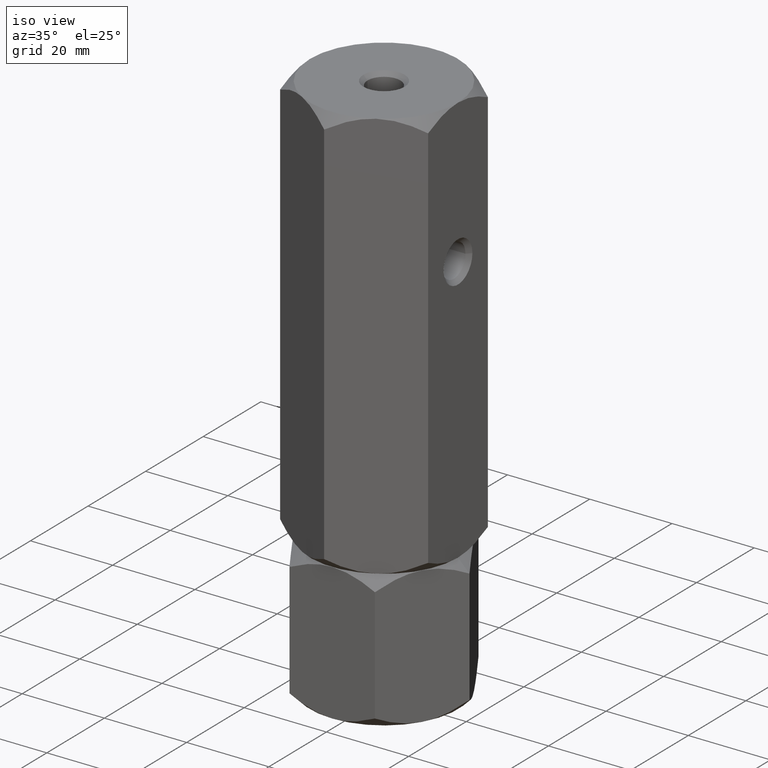
[diagram: clean part render]
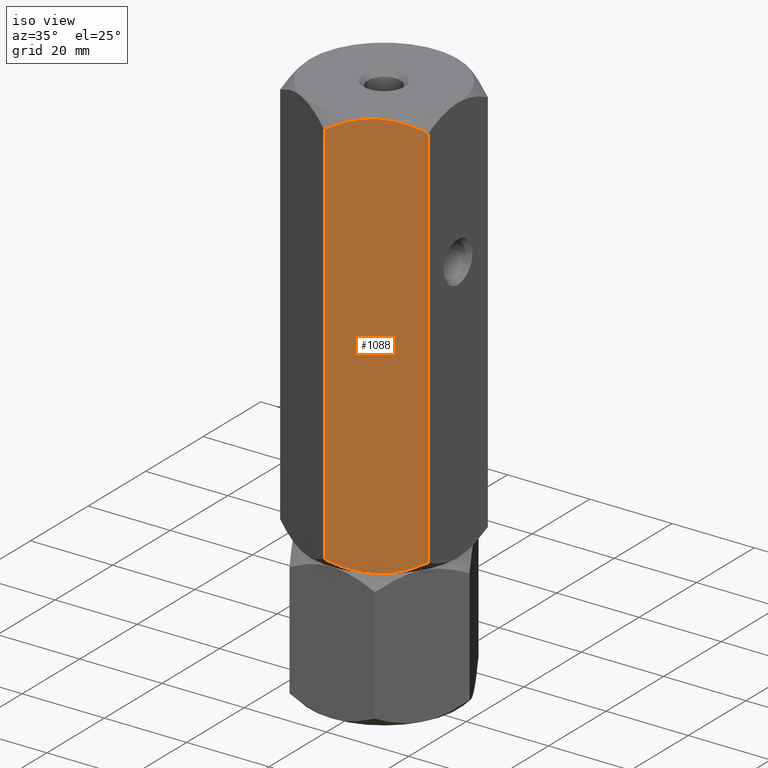
[diagram: same view with one face highlighted and labeled with its STEP entity id]
A machine part, iso view. The second image highlights one B-rep face of the part: STEP entity #1088.
In plain terms, the highlighted planar face has unit normal (-0.5, 0.866, 0).
Its self-contained STEP definition (entity closure, byte-faithful):
#49 = EDGE_CURVE ( 'NONE', #600, #632, #1937, .T. ) ;
#57 = VERTEX_POINT ( 'NONE', #984 ) ;
#62 = LINE ( 'NONE', #1528, #1071 ) ;
#68 = DIRECTION ( 'NONE',  ( -0.4999999999999996114, 0.8660254037844388186, 0.000000000000000000 ) ) ;
#75 = CARTESIAN_POINT ( 'NONE',  ( -3.379014044959083873E-15, -20.78460969082652809, 36.11794302415981406 ) ) ;
#83 = CARTESIAN_POINT ( 'NONE',  ( 8.999999999999994671, -15.58845726811989785, 133.3333333333333144 ) ) ;
#99 = CARTESIAN_POINT ( 'NONE',  ( 8.999999999999996447, -15.58845726811990140, 33.33333333333330017 ) ) ;
#107 = CARTESIAN_POINT ( 'NONE',  ( 8.999999999999994671, -15.58845726811989785, 133.3333333333333144 ) ) ;
#135 = EDGE_CURVE ( 'NONE', #1551, #1641, #1814, .T. ) ;
#157 = CARTESIAN_POINT ( 'NONE',  ( 12.90267270303527525, -13.33524813246348018, 33.87041888916230903 ) ) ;
#169 = CARTESIAN_POINT ( 'NONE',  ( 10.97671975407794953, -14.44719758599054238, 33.47205593243187138 ) ) ;
#183 = CARTESIAN_POINT ( 'NONE',  ( 9.394125676616221554, -15.36090870263097585, 33.33333333333330017 ) ) ;
#253 = CARTESIAN_POINT ( 'NONE',  ( 8.209538469370119884, -16.04483044561310479, 133.3160004768592444 ) ) ;
#401 = CARTESIAN_POINT ( 'NONE',  ( 5.097327296964715870, -17.84166640377631907, 132.7962477775043055 ) ) ;
#500 = CARTESIAN_POINT ( 'NONE',  ( 10.56546083169953398, -14.68463803553235358, 133.3333333333332860 ) ) ;
#517 = EDGE_LOOP ( 'NONE', ( #1203, #979, #626, #1453, #1237, #933 ) ) ;
#561 = CARTESIAN_POINT ( 'NONE',  ( 16.59030399953601531, -11.20619321075669816, 131.3626120078502595 ) ) ;
#573 = CARTESIAN_POINT ( 'NONE',  ( 1.411330396252042485, -19.96977770663490048, 131.3635556266983428 ) ) ;
#580 = CARTESIAN_POINT ( 'NONE',  ( -3.379014044959083873E-15, -20.78460969082652809, 36.11794302415981406 ) ) ;
#600 = VERTEX_POINT ( 'NONE', #107 ) ;
#626 = ORIENTED_EDGE ( 'NONE', *, *, #135, .F. ) ;
#632 = VERTEX_POINT ( 'NONE', #1839 ) ;
#666 = CARTESIAN_POINT ( 'NONE',  ( 16.58866960374795951, -11.20713682960488988, 35.30311103996820776 ) ) ;
#727 = CARTESIAN_POINT ( 'NONE',  ( 2.854601888853805836, -19.13650452186756823, 132.0559502554434061 ) ) ;
#754 = CARTESIAN_POINT ( 'NONE',  ( 7.434539168300452694, -16.49227650070744744, 33.33333333333330017 ) ) ;
#787 = DIRECTION ( 'NONE',  ( -0.8660254037844388186, -0.4999999999999996114, 0.000000000000000000 ) ) ;
#839 = CARTESIAN_POINT ( 'NONE',  ( -2.998680872865238938E-15, -20.78460969082652809, 133.3333333333333144 ) ) ;
#880 = CARTESIAN_POINT ( 'NONE',  ( 5.858009779716792487, -17.40248616759157940, 132.9927702310780262 ) ) ;
#926 = CARTESIAN_POINT ( 'NONE',  ( 5.895697476400517445, -17.38072716576609622, 33.60972924045488952 ) ) ;
#933 = ORIENTED_EDGE ( 'NONE', *, *, #49, .F. ) ;
#972 = EDGE_CURVE ( 'NONE', #632, #57, #62, .T. ) ;
#979 = ORIENTED_EDGE ( 'NONE', *, *, #1296, .T. ) ;
#982 = CARTESIAN_POINT ( 'NONE',  ( 12.14199022028319774, -13.77442836864822517, 33.67389643558856704 ) ) ;
#984 = CARTESIAN_POINT ( 'NONE',  ( 18.00000000000000355, -10.39230484541326938, 36.11794302415982116 ) ) ;
#1020 = CARTESIAN_POINT ( 'NONE',  ( 7.023280245922038034, -16.72971695024925864, 133.1946107342347148 ) ) ;
#1031 = CARTESIAN_POINT ( 'NONE',  ( -6.297340013485389316E-15, -20.78460969082653165, 130.5487236425067863 ) ) ;
#1053 = CARTESIAN_POINT ( 'NONE',  ( 7.415748492146449600, -16.50312530264321609, 133.2463864432151297 ) ) ;
#1071 = VECTOR ( 'NONE', #1176, 1000.000000000000000 ) ;
#1077 = CARTESIAN_POINT ( 'NONE',  ( 1.409696000463980914, -19.97072132548311174, 35.30405465881634797 ) ) ;
#1088 = ADVANCED_FACE ( 'NONE', ( #1738 ), #1171, .F. ) ;
#1146 = CARTESIAN_POINT ( 'NONE',  ( 8.999999999999996447, -15.58845726811990140, 33.33333333333330017 ) ) ;
#1171 = PLANE ( 'NONE',  #1636 ) ;
#1176 = DIRECTION ( 'NONE',  ( -0.000000000000000000, -0.000000000000000000, -1.000000000000000000 ) ) ;
#1185 = B_SPLINE_CURVE_WITH_KNOTS ( 'NONE', 3,
 ( #1031, #573, #727, #401, #880, #1020, #1053, #253, #1987, #1196 ),
 .UNSPECIFIED., .F., .F.,
 ( 4, 2, 2, 2, 4 ),
 ( 2.544307986837308371E-07, 0.005386537354063076870, 0.008079678815695273339, 0.009426249546511372007, 0.01077282027732746894 ),
 .UNSPECIFIED. ) ;
#1196 = CARTESIAN_POINT ( 'NONE',  ( 8.999999999999994671, -15.58845726811989785, 133.3333333333333144 ) ) ;
#1203 = ORIENTED_EDGE ( 'NONE', *, *, #1619, .F. ) ;
#1231 = CARTESIAN_POINT ( 'NONE',  ( -6.297340013485389316E-15, -20.78460969082653165, 130.5487236425067863 ) ) ;
#1237 = ORIENTED_EDGE ( 'NONE', *, *, #972, .F. ) ;
#1296 = EDGE_CURVE ( 'NONE', #1415, #1641, #1328, .T. ) ;
#1328 = LINE ( 'NONE', #839, #1920 ) ;
#1415 = VERTEX_POINT ( 'NONE', #1231 ) ;
#1453 = ORIENTED_EDGE ( 'NONE', *, *, #1888, .F. ) ;
#1528 = CARTESIAN_POINT ( 'NONE',  ( 18.00000000000000355, -10.39230484541326938, 133.3333333333333144 ) ) ;
#1551 = VERTEX_POINT ( 'NONE', #1146 ) ;
#1600 = CARTESIAN_POINT ( 'NONE',  ( -2.998680872865238938E-15, -20.78460969082652809, 133.3333333333333144 ) ) ;
#1610 = CARTESIAN_POINT ( 'NONE',  ( 18.00000000000000355, -10.39230484541326938, 36.11794302415982116 ) ) ;
#1619 = EDGE_CURVE ( 'NONE', #1415, #600, #1185, .T. ) ;
#1636 = AXIS2_PLACEMENT_3D ( 'NONE', #1600, #68, #787 ) ;
#1640 = CARTESIAN_POINT ( 'NONE',  ( 9.790461530629871234, -15.13208409062669801, 33.35066618980737019 ) ) ;
#1641 = VERTEX_POINT ( 'NONE', #75 ) ;
#1670 = CARTESIAN_POINT ( 'NONE',  ( 12.10430252359947900, -13.79618737047371013, 133.0569374262117606 ) ) ;
#1738 = FACE_OUTER_BOUND ( 'NONE', #517, .T. ) ;
#1769 = CARTESIAN_POINT ( 'NONE',  ( 8.999999999999996447, -15.58845726811990140, 33.33333333333330017 ) ) ;
#1787 = CARTESIAN_POINT ( 'NONE',  ( 10.58425150785353885, -14.67378923359658494, 33.42028022345144933 ) ) ;
#1814 = B_SPLINE_CURVE_WITH_KNOTS ( 'NONE', 3,
 ( #99, #754, #926, #2002, #1077, #580 ),
 .UNSPECIFIED., .F., .F.,
 ( 4, 2, 4 ),
 ( 0.01077282027732747761, 0.01612137750481874160, 0.02146993473231000732 ),
 .UNSPECIFIED. ) ;
#1839 = CARTESIAN_POINT ( 'NONE',  ( 18.00000000000000355, -10.39230484541327115, 130.5487236425067863 ) ) ;
#1866 = B_SPLINE_CURVE_WITH_KNOTS ( 'NONE', 3,
 ( #1610, #666, #1929, #157, #982, #169, #1787, #1640, #183, #1769 ),
 .UNSPECIFIED., .F., .F.,
 ( 4, 2, 2, 2, 4 ),
 ( 2.544307986796311447E-07, 0.005386537354063079472, 0.008079678815695276808, 0.009426249546511377211, 0.01077282027732747761 ),
 .UNSPECIFIED. ) ;
#1888 = EDGE_CURVE ( 'NONE', #57, #1551, #1866, .T. ) ;
#1919 = CARTESIAN_POINT ( 'NONE',  ( 18.00000000000000355, -10.39230484541327115, 130.5487236425067863 ) ) ;
#1920 = VECTOR ( 'NONE', #1940, 1000.000000000000000 ) ;
#1929 = CARTESIAN_POINT ( 'NONE',  ( 15.14539811114618750, -12.04041001437223102, 34.61071641122316578 ) ) ;
#1931 = CARTESIAN_POINT ( 'NONE',  ( 15.13928418966203360, -12.04393988858691067, 132.0607586318289748 ) ) ;
#1937 = B_SPLINE_CURVE_WITH_KNOTS ( 'NONE', 3,
 ( #83, #500, #1670, #1931, #561, #1919 ),
 .UNSPECIFIED., .F., .F.,
 ( 4, 2, 4 ),
 ( 0.01077282027732746894, 0.01612137750481873466, 0.02146993473230999691 ),
 .UNSPECIFIED. ) ;
#1940 = DIRECTION ( 'NONE',  ( -0.000000000000000000, -0.000000000000000000, -1.000000000000000000 ) ) ;
#1987 = CARTESIAN_POINT ( 'NONE',  ( 8.605874323383771340, -15.81600583360882872, 133.3333333333333428 ) ) ;
#2002 = CARTESIAN_POINT ( 'NONE',  ( 2.860715810337960185, -19.13297464765288325, 34.60590803483753319 ) ) ;